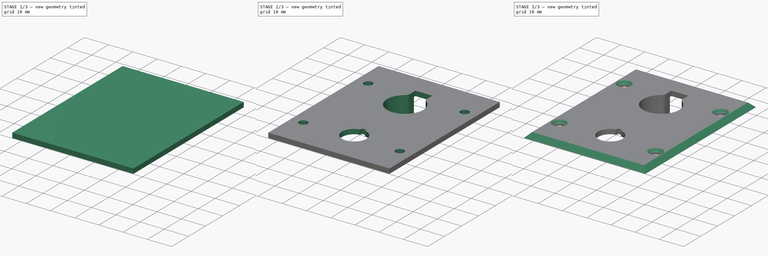
[diagram: build sequence overview — one tinted view per stage of 3, left to right]
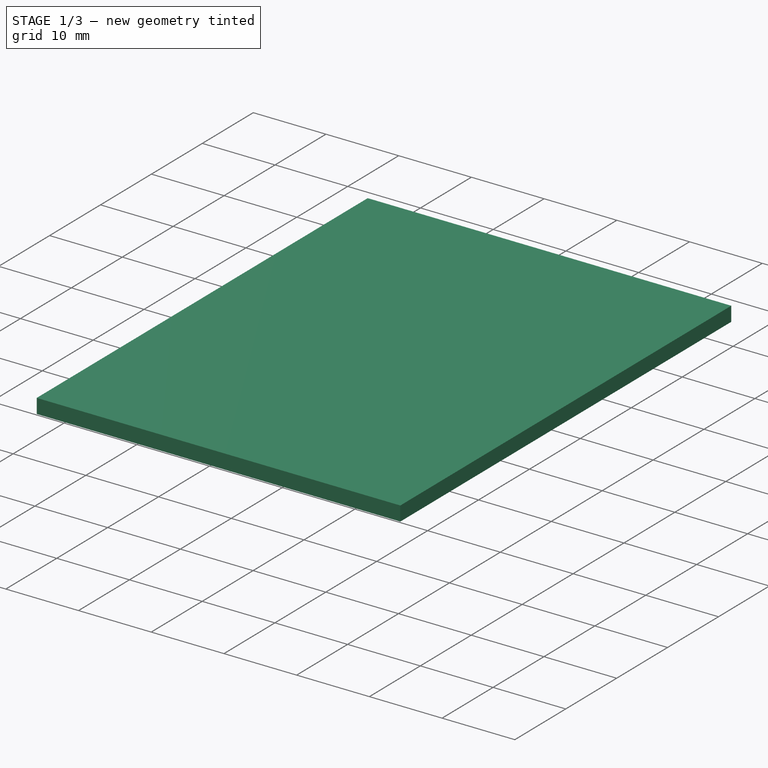
[diagram: stage 1 of 3 — iso view after this stage's code; geometry added in this stage tinted green]
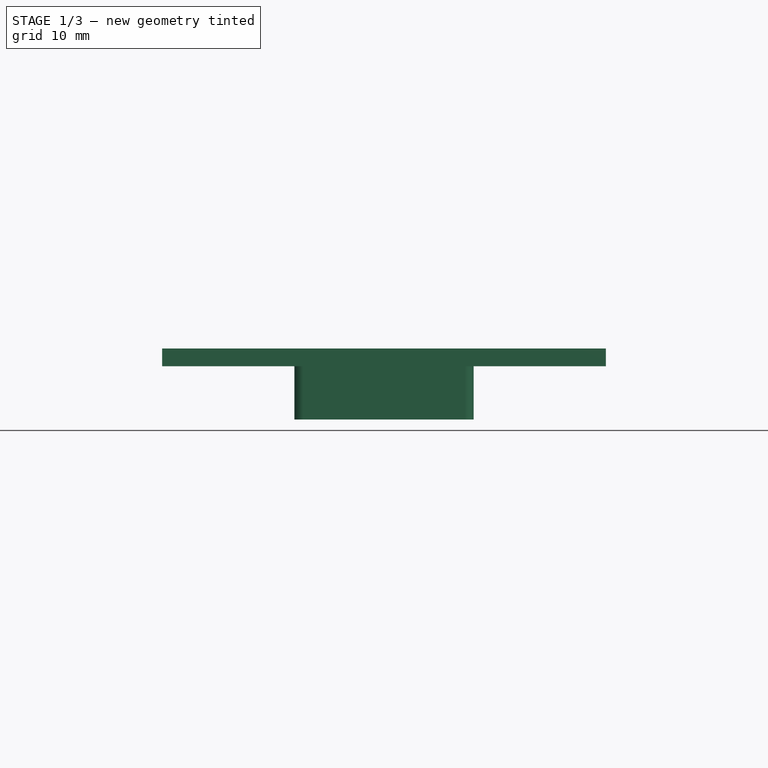
[diagram: stage 1 of 3 — front view after this stage's code; geometry added in this stage tinted green]
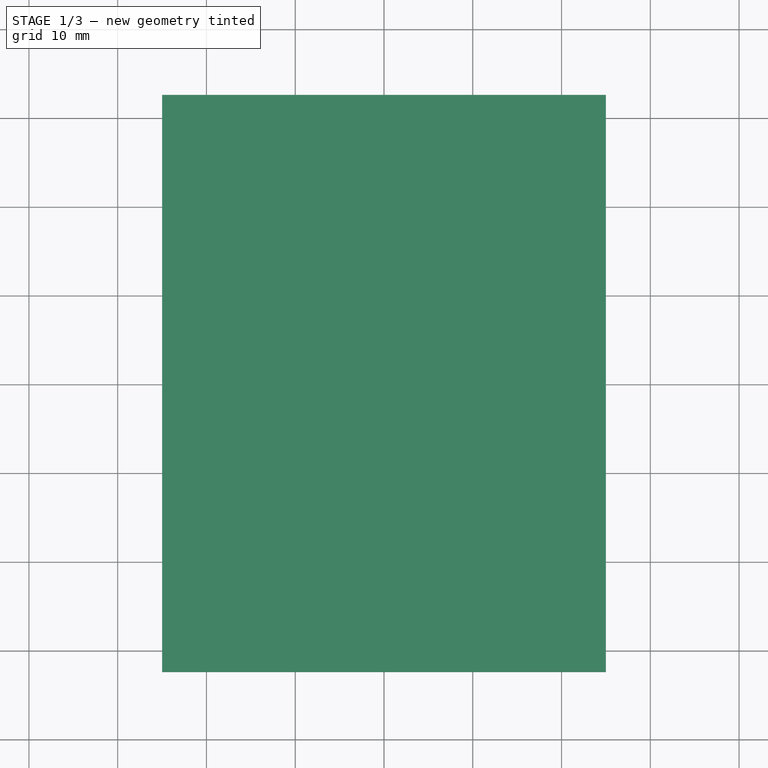
[diagram: stage 1 of 3 — top view after this stage's code; geometry added in this stage tinted green]
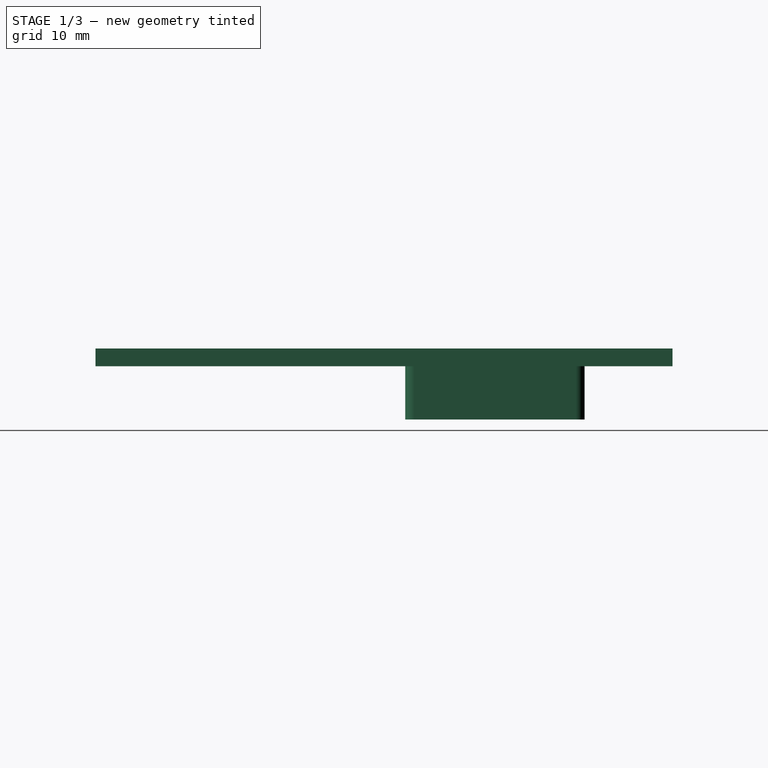
[diagram: stage 1 of 3 — right view after this stage's code; geometry added in this stage tinted green]
FCSTD DOCUMENT  (FreeCAD 0.21R33771 (Git))
Label: connector_plate_T245_T115
License: All rights reserved
LicenseURL: https://en.wikipedia.org/wiki/All_rights_reserved
objects: Sketcher::SketchObject×4, PartDesign::Pad×2, PartDesign::Plane×2, PartDesign::Pocket×2, PartDesign::Chamfer×2, Spreadsheet::Sheet×1, PartDesign::Body×1
note: 19 computed .brp shape members not serialized (recipe doc carries the construction recipe); baked Part::Feature solids carry a one-line shape summary decoded from their .brp

FEATURE [Spreadsheet::Sheet] Spreadsheet  label="settings"
  cells = A1='Plate X; B1(plate_X)=50; C1='holes x space; D1(holes_X_space)=39.8; E1='T245 X pos; F1(T245_X)=25; G1='T245 mount width; H1(T245_mount_W)=20.2; I1='T115 X pos; J1(T115_X)=25; A2='Plate Y; B2(plate_Y)=65; C2='holes y space; D2(holes_Y_space)=38.2; E2='T245 Y pos; F2(T245_Y)=45; G2='T245 mount height; H2(T245_mount_H)=6; I2='T115 Y pos; J2(T115_Y)=15; A3='Plate Z; B3(plate_Z)=2; C3='holes dia; D3(holes_D)=3.5; E3='T245 hole dia; F3(T245_hole_D)=15; G3='T245 mount hole pitch; H3(T245_mount_hole_P)=14.5; I3='T115 hole dia; J3(T115_hole_D)=10.1; C4='Hole chamfer; D4(holes_C)=1.2; E4='T245 lip Lengt; F4(T245_lip_L)=11; G4='T245 mount hole dia; H4(T245_mount_hole_D)=2; I4='T115 lip length; J4(T115_lip_L)=5.9; E5='T245 lip Width; F5(T245_lip_W)=7; G5='T245 mount fillet length; H5(T245_mount_fillet_L)=1; I5='T115 lip width; J5(T115_lip_W)=1.8; E6='T245 chamfer Len; F6(T245_chamfer_L)=1; E7='T245 chamfer arc radius; F7(T245_chamfer_R)=2; A10='Calculations; A11='Zero X; B11(plate_zero_X)==plate_X / 2; E11='T245 lip+chamf; F11(T245_lip_chamfer_L)==T245_lip_W + T245_chamfer_L; A12='Zero Y; B12(plate_zero_Y)==plate_Y / 2; A13='Plate chamfer; B13(plate_C)==plate_Z - 0.1
FEATURE [Sketcher::SketchObject] Sketch
  FullyConstrained = true
  MapMode = 5
  Support = -> [XY_Plane]
  expr: Constraints[10] = <<settings>>.plate_Y
  expr: Constraints[9] = <<settings>>.plate_X
  sketch-geometry (4):
    g0: LineSegment StartX=-25 StartY=32.5 StartZ=0 EndX=25 EndY=32.5 EndZ=0
    g1: LineSegment StartX=25 StartY=32.5 StartZ=0 EndX=25 EndY=-32.5 EndZ=0
    g2: LineSegment StartX=25 StartY=-32.5 StartZ=0 EndX=-25 EndY=-32.5 EndZ=0
    g3: LineSegment StartX=-25 StartY=-32.5 StartZ=0 EndX=-25 EndY=32.5 EndZ=0
  constraints (11):
    c: Coincident(g0,g1)
    c: Coincident(g1,g2)
    c: Coincident(g2,g3)
    c: Coincident(g3,g0)
    c: Horizontal(g0)
    c: Horizontal(g2)
    c: Vertical(g1)
    c: Vertical(g3)
    c: Symmetric(g0,g2,g-1)
    c: Distance(g0) = 50
    c: Distance(g3) = 65
FEATURE [PartDesign::Pad] Pad  label="plate"
  Direction = (0,0,1)
  Length = 2
  Length2 = 10
  Profile = -> Sketch
  ReferenceAxis = -> Sketch [N_Axis]
  Type = 0
  expr: Length = <<settings>>.plate_Z
FEATURE [PartDesign::Plane] DatumPlane  label="top_plane"
  AttachmentOffset = pos=(0,0,2) rot=(0,0,1;0rad)
  Length = 61.4018
  MapMode = 5
  Placement = pos=(0,0,2) rot=(0,0,1;0rad)
  ResizeMode = 0
  Support = -> [XY_Plane]
  Width = 76.4018
  expr: .AttachmentOffset.Base.z = <<settings>>.plate_Z
FEATURE [Sketcher::SketchObject] Sketch001
  FullyConstrained = true
  MapMode = 5
  Placement = pos=(0,0,2) rot=(0,0,1;0rad)
  Support = -> [DatumPlane]
  expr: Constraints[10] = <<settings>>.holes_Y_space
  expr: Constraints[18] = <<settings>>.holes_D
  expr: Constraints[9] = <<settings>>.holes_X_space
  sketch-geometry (8):
    g0: LineSegment StartX=-19.9 StartY=19.1 StartZ=0 EndX=19.9 EndY=19.1 EndZ=0
    g1: LineSegment StartX=19.9 StartY=19.1 StartZ=0 EndX=19.9 EndY=-19.1 EndZ=0
    g2: LineSegment StartX=19.9 StartY=-19.1 StartZ=0 EndX=-19.9 EndY=-19.1 EndZ=0
    g3: LineSegment StartX=-19.9 StartY=-19.1 StartZ=0 EndX=-19.9 EndY=19.1 EndZ=0
    g4: Circle CenterX=-19.9 CenterY=19.1 CenterZ=0 NormalX=0 NormalY=0 NormalZ=1 AngleXU=0 Radius=1.75
    g5: Circle CenterX=19.9 CenterY=19.1 CenterZ=0 NormalX=0 NormalY=0 NormalZ=1 AngleXU=0 Radius=1.75
    g6: Circle CenterX=19.9 CenterY=-19.1 CenterZ=0 NormalX=0 NormalY=0 NormalZ=1 AngleXU=0 Radius=1.75
    g7: Circle CenterX=-19.9 CenterY=-19.1 CenterZ=0 NormalX=0 NormalY=0 NormalZ=1 AngleXU=0 Radius=1.75
  constraints (19):
    c: Coincident(g0,g1)
    c: Coincident(g1,g2)
    c: Coincident(g2,g3)
    c: Coincident(g3,g0)
    c: Horizontal(g0)
    c: Horizontal(g2)
    c: Vertical(g1)
    c: Vertical(g3)
    c: Symmetric(g0,g2,g-1)
    c: Distance(g0) = 39.8
    c: Distance(g3) = 38.2
    c: Coincident(g4,g0)
    c: Coincident(g5,g0)
    c: Coincident(g7,g2)
    c: Coincident(g6,g1)
    c: Equal(g4,g5)
    c: Equal(g5,g6)
    c: Equal(g6,g7)
    c: Diameter(g4) = 3.5
FEATURE [Sketcher::SketchObject] Sketch002
  FullyConstrained = true
  MapMode = 5
  Placement = pos=(0,0,2) rot=(0,0,1;0rad)
  Support = -> [DatumPlane]
  expr: Constraints[10] = <<settings>>.plate_zero_X
  expr: Constraints[20] = <<settings>>.T245_Y
  expr: Constraints[21] = <<settings>>.T245_X
  expr: Constraints[23] = <<settings>>.T245_lip_chamfer_L
  expr: Constraints[25] = <<settings>>.T245_hole_D
  expr: Constraints[30] = <<settings>>.T245_lip_L
  expr: Constraints[33] = <<settings>>.T245_lip_W
  expr: Constraints[46] = <<settings>>.T245_chamfer_R
  expr: Constraints[47] = <<settings>>.T245_chamfer_L
  expr: Constraints[50] = <<settings>>.T245_chamfer_L
  expr: Constraints[51] = <<settings>>.T245_chamfer_R
  expr: Constraints[60] = <<settings>>.T115_X
  expr: Constraints[61] = <<settings>>.T115_Y
  expr: Constraints[65] = <<settings>>.T115_lip_W
  expr: Constraints[66] = <<settings>>.T115_hole_D
  expr: Constraints[69] = <<settings>>.T115_lip_L
  expr: Constraints[9] = <<settings>>.plate_zero_Y
  sketch-geometry (27):
    g0: LineSegment StartX=0 StartY=0 StartZ=0 EndX=-25 EndY=0 EndZ=0
    g1: LineSegment StartX=-25 StartY=0 StartZ=0 EndX=-25 EndY=-32.5 EndZ=0
    g2: LineSegment StartX=-25 StartY=-32.5 StartZ=0 EndX=0 EndY=-32.5 EndZ=0
    g3: LineSegment StartX=0 StartY=-32.5 StartZ=0 EndX=0 EndY=0 EndZ=0
    g4: LineSegment StartX=-25 StartY=-32.5 StartZ=0 EndX=0 EndY=-32.5 EndZ=0
    g5: LineSegment StartX=-8e-16 StartY=-32.5 StartZ=0 EndX=-8e-16 EndY=12.5 EndZ=0
    g6: LineSegment StartX=-8e-16 StartY=12.5 StartZ=0 EndX=-25 EndY=12.5 EndZ=0
    g7: LineSegment StartX=-25 StartY=12.5 StartZ=0 EndX=-25 EndY=-32.5 EndZ=0
    g8: ArcOfCircle CenterX=-8e-16 CenterY=12.5 CenterZ=0 NormalX=0 NormalY=0 NormalZ=1 AngleXU=0 Radius=7.5 StartAngle=2.13333 EndAngle=7.29145
    g9: Circle CenterX=-8e-16 CenterY=12.5 CenterZ=0 NormalX=0 NormalY=0 NormalZ=1 AngleXU=0 Radius=7.5
    g10: LineSegment StartX=-8e-16 StartY=12.5 StartZ=0 EndX=-8e-16 EndY=23.5 EndZ=0
    g11: LineSegment StartX=-3.5 StartY=23.5 StartZ=0 EndX=3.5 EndY=23.5 EndZ=0
    g12: LineSegment StartX=-3.5 StartY=23.5 StartZ=0 EndX=-3.5 EndY=19.1332 EndZ=0
    g13: LineSegment StartX=3.5 StartY=23.5 StartZ=0 EndX=3.5 EndY=19.1332 EndZ=0
    g14: LineSegment StartX=-3.5 StartY=23.5 StartZ=0 EndX=-3.5 EndY=20.1332 EndZ=0
    g15: LineSegment StartX=3.5 StartY=23.5 StartZ=0 EndX=3.5 EndY=20.1332 EndZ=0
    g16: ArcOfCircle CenterX=-5.49971 CenterY=20.1675 CenterZ=0 NormalX=0 NormalY=0 NormalZ=1 AngleXU=0 Radius=2 StartAngle=5.56023 EndAngle=6.26606
    g17: ArcOfCircle CenterX=5.49971 CenterY=20.1675 CenterZ=0 NormalX=0 NormalY=0 NormalZ=1 AngleXU=0 Radius=2 StartAngle=3.15872 EndAngle=3.86455
    g18: LineSegment StartX=-25 StartY=-17.5 StartZ=0 EndX=0 EndY=-17.5 EndZ=0
    g19: LineSegment StartX=-1.6e-15 StartY=-17.5 StartZ=0 EndX=-1.6e-15 EndY=-32.5 EndZ=0
    g20: LineSegment StartX=-1.6e-15 StartY=-32.5 StartZ=0 EndX=-25 EndY=-32.5 EndZ=0
    g21: LineSegment StartX=-25 StartY=-32.5 StartZ=0 EndX=-25 EndY=-17.5 EndZ=0
    g22: ArcOfCircle CenterX=-1.6e-15 CenterY=-17.5 CenterZ=0 NormalX=0 NormalY=0 NormalZ=1 AngleXU=0 Radius=5.05 StartAngle=1.74997 EndAngle=7.67481
    g23: LineSegment StartX=-1.6e-15 StartY=-17.5 StartZ=0 EndX=-1.6e-15 EndY=-11.6 EndZ=0
    g24: LineSegment StartX=-0.9 StartY=-11.6 StartZ=0 EndX=0.9 EndY=-11.6 EndZ=0
    g25: LineSegment StartX=-0.9 StartY=-11.6 StartZ=0 EndX=-0.9 EndY=-12.5308 EndZ=0
    g26: LineSegment StartX=0.9 StartY=-11.6 StartZ=0 EndX=0.9 EndY=-12.5308 EndZ=0
  constraints (77):
    c: Coincident(g0,g1)
    c: Coincident(g1,g2)
    c: Coincident(g2,g3)
    c: Coincident(g3,g0)
    c: Horizontal(g0)
    c: Horizontal(g2)
    c: Vertical(g1)
    c: Vertical(g3)
    c: Coincident(g0,g-1)
    c: Distance(g1) = 32.5
    c: Distance(g2) = 25
    c: Coincident(g4,g5)
    c: Coincident(g5,g6)
    c: Coincident(g6,g7)
    c: Coincident(g7,g4)
    c: Horizontal(g4)
    c: Horizontal(g6)
    c: Vertical(g5)
    c: Vertical(g7)
    c: Coincident(g4,g1)
    c: Distance(g5) = 45
    c: Distance(g6) = 25
    c: Horizontal(g8,g8)
    c: Distance(g8,g8) = 8
    c: Coincident(g9,g8)
    c: Diameter(g9) = 15
    c: Equal(g8,g9)
    c: Coincident(g8,g5)
    c: Coincident(g10,g8)
    c: Vertical(g10)
    c: Distance(g10) = 11
    c: Horizontal(g11)
    c: Symmetric(g11,g11,g10)
    c: Distance(g11) = 7
    c: Coincident(g12,g11)
    c: PointOnObject(g12,g9)
    c: Vertical(g12)
    c: Coincident(g13,g11)
    c: PointOnObject(g13,g9)
    c: Vertical(g13)
    c: Coincident(g14,g11)
    c: PointOnObject(g14,g12)
    c: Coincident(g15,g11)
    c: PointOnObject(g15,g13)
    c: Coincident(g16,g14)
    c: Coincident(g16,g8)
    c: Distance(g16,g8) = 2
    c: Distance(g14,g12) = 1
    c: Coincident(g17,g8)
    c: Coincident(g17,g15)
    c: Distance(g15,g13) = 1
    c: Distance(g17,g8) = 2
    c: Coincident(g18,g19)
    c: Coincident(g19,g20)
    c: Coincident(g20,g21)
    c: Coincident(g21,g18)
    c: Horizontal(g18)
    c: Horizontal(g20)
    c: Vertical(g19)
    c: Vertical(g21)
    c: Distance(g20) = 25
    c: Distance(g21) = 15
    c: Coincident(g20,g1)
    c: Coincident(g22,g18)
    c: Horizontal(g22,g22)
    c: Distance(g22,g22) = 1.8
    c: Diameter(g22) = 10.1
    c: Coincident(g23,g22)
    c: Vertical(g23)
    c: Distance(g23,g22) = 5.9
    c: Symmetric(g24,g24,g23)
    c: Horizontal(g24)
    c: Vertical(g24,g22)
    c: Coincident(g25,g24)
    c: Coincident(g25,g22)
    c: Coincident(g26,g24)
    c: Coincident(g26,g22)
FEATURE [PartDesign::Plane] DatumPlane001  label="bottom plane"
  Length = 61.4018
  MapMode = 5
  ResizeMode = 0
  Support = -> [XY_Plane]
  Width = 76.4018
FEATURE [Sketcher::SketchObject] Sketch003
  FullyConstrained = true
  MapMode = 5
  Support = -> [DatumPlane001]
  expr: Constraints[10] = <<settings>>.plate_zero_X
  expr: Constraints[20] = <<settings>>.T245_X
  expr: Constraints[21] = <<settings>>.T245_Y
  expr: Constraints[42] = <<settings>>.T245_mount_W
  expr: Constraints[43] = <<settings>>.T245_mount_hole_P
  expr: Constraints[54] = <<settings>>.T245_mount_fillet_L
  expr: Constraints[58] = <<settings>>.T245_mount_fillet_L
  expr: Constraints[69] = <<settings>>.T245_mount_fillet_L
  expr: Constraints[70] = <<settings>>.T245_mount_fillet_L
  expr: Constraints[79] = <<settings>>.T245_mount_hole_D
  expr: Constraints[9] = <<settings>>.plate_zero_Y
  sketch-geometry (28):
    g0: LineSegment StartX=0 StartY=0 StartZ=0 EndX=25 EndY=0 EndZ=0
    g1: LineSegment StartX=25 StartY=0 StartZ=0 EndX=25 EndY=-32.5 EndZ=0
    g2: LineSegment StartX=25 StartY=-32.5 StartZ=0 EndX=0 EndY=-32.5 EndZ=0
    g3: LineSegment StartX=0 StartY=-32.5 StartZ=0 EndX=0 EndY=0 EndZ=0
    g4: LineSegment StartX=25 StartY=-32.5 StartZ=0 EndX=0 EndY=-32.5 EndZ=0
    g5: LineSegment StartX=0 StartY=-32.5 StartZ=0 EndX=0 EndY=12.5 EndZ=0
    g6: LineSegment StartX=0 StartY=12.5 StartZ=0 EndX=25 EndY=12.5 EndZ=0
    g7: LineSegment StartX=25 StartY=12.5 StartZ=0 EndX=25 EndY=-32.5 EndZ=0
    g8: LineSegment StartX=-10.1 StartY=2.4 StartZ=0 EndX=10.1 EndY=2.4 EndZ=0
    g9: LineSegment StartX=10.1 StartY=2.4 StartZ=0 EndX=10.1 EndY=22.6 EndZ=0
    g10: LineSegment StartX=10.1 StartY=22.6 StartZ=0 EndX=-10.1 EndY=22.6 EndZ=0
    g11: LineSegment StartX=-10.1 StartY=22.6 StartZ=0 EndX=-10.1 EndY=2.4 EndZ=0
    g12: LineSegment StartX=-7.25 StartY=5.25 StartZ=0 EndX=7.25 EndY=5.25 EndZ=0
    g13: LineSegment StartX=7.25 StartY=5.25 StartZ=0 EndX=7.25 EndY=19.75 EndZ=0
    g14: LineSegment StartX=7.25 StartY=19.75 StartZ=0 EndX=-7.25 EndY=19.75 EndZ=0
    g15: LineSegment StartX=-7.25 StartY=19.75 StartZ=0 EndX=-7.25 EndY=5.25 EndZ=0
    g16: LineSegment StartX=-10.1 StartY=3.4 StartZ=0 EndX=-10.1 EndY=21.6 EndZ=0
    g17: LineSegment StartX=-9.1 StartY=22.6 StartZ=0 EndX=9.1 EndY=22.6 EndZ=0
    g18: LineSegment StartX=10.1 StartY=21.6 StartZ=0 EndX=10.1 EndY=3.4 EndZ=0
    g19: LineSegment StartX=-9.1 StartY=2.4 StartZ=0 EndX=9.1 EndY=2.4 EndZ=0
    g20: ArcOfCircle CenterX=-9.1 CenterY=3.4 CenterZ=0 NormalX=0 NormalY=0 NormalZ=1 AngleXU=0 Radius=1 StartAngle=3.14159 EndAngle=4.71239
    g21: ArcOfCircle CenterX=9.1 CenterY=3.4 CenterZ=0 NormalX=0 NormalY=0 NormalZ=1 AngleXU=0 Radius=1 StartAngle=4.71239 EndAngle=6.28319
    g22: ArcOfCircle CenterX=9.1 CenterY=21.6 CenterZ=0 NormalX=0 NormalY=0 NormalZ=1 AngleXU=0 Radius=1 StartAngle=-9e-16 EndAngle=1.5708
    g23: ArcOfCircle CenterX=-9.1 CenterY=21.6 CenterZ=0 NormalX=0 NormalY=0 NormalZ=1 AngleXU=0 Radius=1 StartAngle=1.5708 EndAngle=3.14159
    g24: Circle CenterX=-7.25 CenterY=5.25 CenterZ=0 NormalX=0 NormalY=0 NormalZ=1 AngleXU=0 Radius=1
    g25: Circle CenterX=7.25 CenterY=5.25 CenterZ=0 NormalX=0 NormalY=0 NormalZ=1 AngleXU=0 Radius=1
    g26: Circle CenterX=7.25 CenterY=19.75 CenterZ=0 NormalX=0 NormalY=0 NormalZ=1 AngleXU=0 Radius=1
    g27: Circle CenterX=-7.25 CenterY=19.75 CenterZ=0 NormalX=0 NormalY=0 NormalZ=1 AngleXU=0 Radius=1
  constraints (80):
    c: Coincident(g0,g1)
    c: Coincident(g1,g2)
    c: Coincident(g2,g3)
    c: Coincident(g3,g0)
    c: Horizontal(g0)
    c: Horizontal(g2)
    c: Vertical(g1)
    c: Vertical(g3)
    c: Coincident(g0,g-1)
    c: Distance(g1) = 32.5
    c: Distance(g2) = 25
    c: Coincident(g4,g5)
    c: Coincident(g5,g6)
    c: Coincident(g6,g7)
    c: Coincident(g7,g4)
    c: Horizontal(g4)
    c: Horizontal(g6)
    c: Vertical(g5)
    c: Vertical(g7)
    c: Coincident(g4,g1)
    c: Distance(g6) = 25
    c: Distance(g5) = 45
    c: Coincident(g8,g9)
    c: Coincident(g9,g10)
    c: Coincident(g10,g11)
    c: Coincident(g11,g8)
    c: Horizontal(g8)
    c: Horizontal(g10)
    c: Vertical(g9)
    c: Vertical(g11)
    c: Symmetric(g8,g10,g5)
    c: Equal(g8,g11)
    c: Coincident(g12,g13)
    c: Coincident(g13,g14)
    c: Coincident(g14,g15)
    c: Coincident(g15,g12)
    c: Horizontal(g12)
    c: Horizontal(g14)
    c: Vertical(g13)
    c: Vertical(g15)
    c: Symmetric(g12,g14,g5)
    c: Equal(g13,g12)
    c: Distance(g10) = 20.2
    c: Distance(g14) = 14.5
    c: PointOnObject(g16,g11)
    c: PointOnObject(g16,g11)
    c: PointOnObject(g17,g10)
    c: PointOnObject(g17,g10)
    c: PointOnObject(g18,g9)
    c: PointOnObject(g18,g9)
    c: PointOnObject(g19,g8)
    c: Horizontal(g19)
    c: Horizontal(g20,g20)
    c: Vertical(g20,g20)
    c: Distance(g20,g8) = 1
    c: Coincident(g19,g20)
    c: Vertical(g23,g23)
    c: Horizontal(g23,g23)
    c: Distance(g23,g10) = 1
    c: Coincident(g17,g23)
    c: Coincident(g16,g23)
    c: Coincident(g22,g17)
    c: Vertical(g22,g17)
    c: Horizontal(g22,g22)
    c: Coincident(g18,g22)
    c: Coincident(g18,g21)
    c: Coincident(g21,g19)
    c: Horizontal(g21,g18)
    c: Vertical(g21,g19)
    c: Distance(g17,g9) = 1
    c: Distance(g19,g8) = 1
    c: Coincident(g16,g20)
    c: Coincident(g24,g12)
    c: Coincident(g25,g12)
    c: Coincident(g26,g13)
    c: Coincident(g27,g14)
    c: Equal(g24,g27)
    c: Equal(g27,g26)
    c: Equal(g26,g25)
    c: Diameter(g24) = 2
FEATURE [PartDesign::Pad] Pad001  label="T245_mount"
  BaseFeature = -> Pad
  Direction = (0,0,1)
  Length = 6
  Length2 = 10
  Profile = -> Sketch003
  ReferenceAxis = -> Sketch003 [N_Axis]
  Reversed = true
  Type = 0
  expr: Length = <<settings>>.T245_mount_H
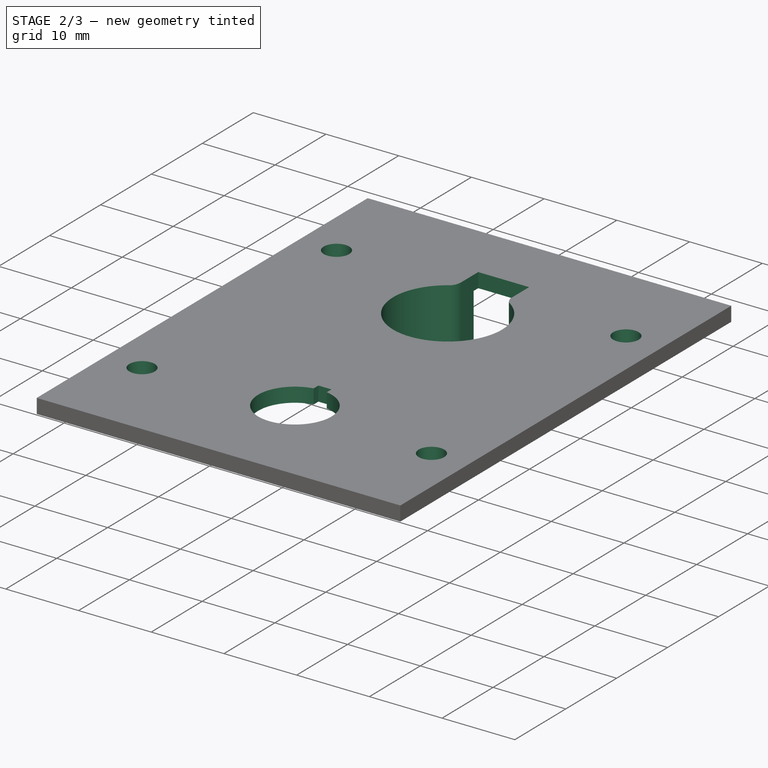
[diagram: stage 2 of 3 — iso view after this stage's code; geometry added in this stage tinted green]
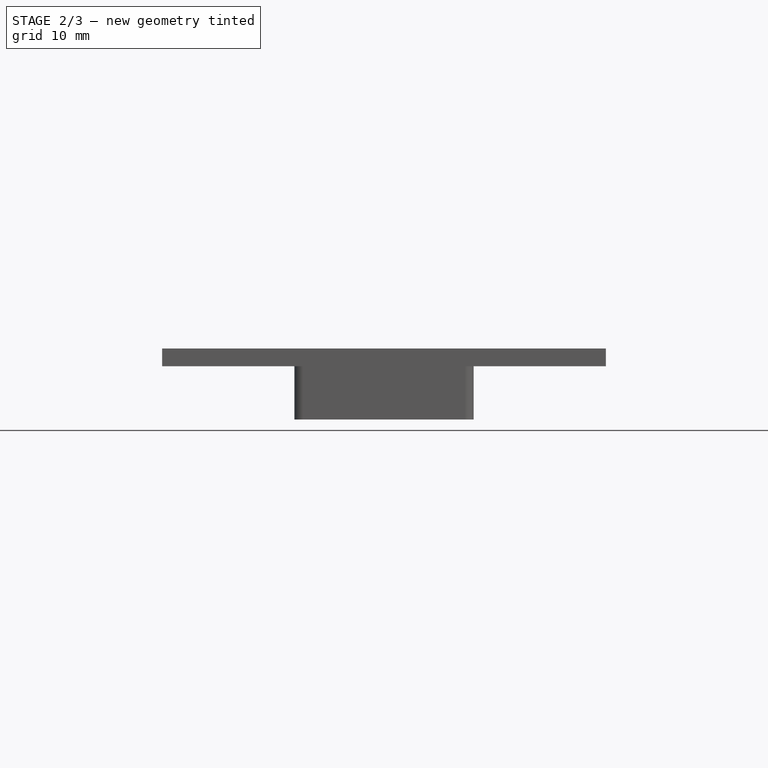
[diagram: stage 2 of 3 — front view after this stage's code; geometry added in this stage tinted green]
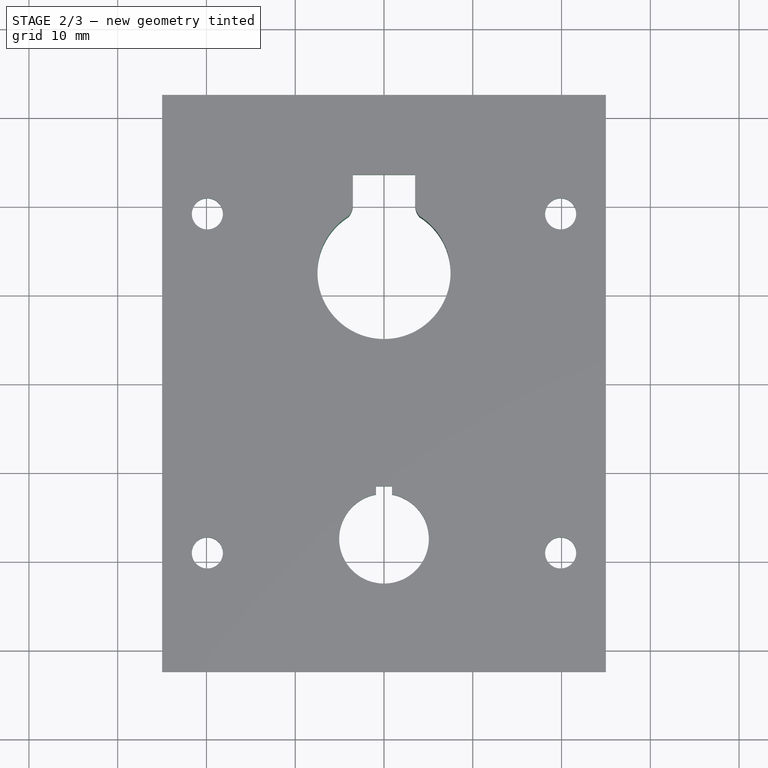
[diagram: stage 2 of 3 — top view after this stage's code; geometry added in this stage tinted green]
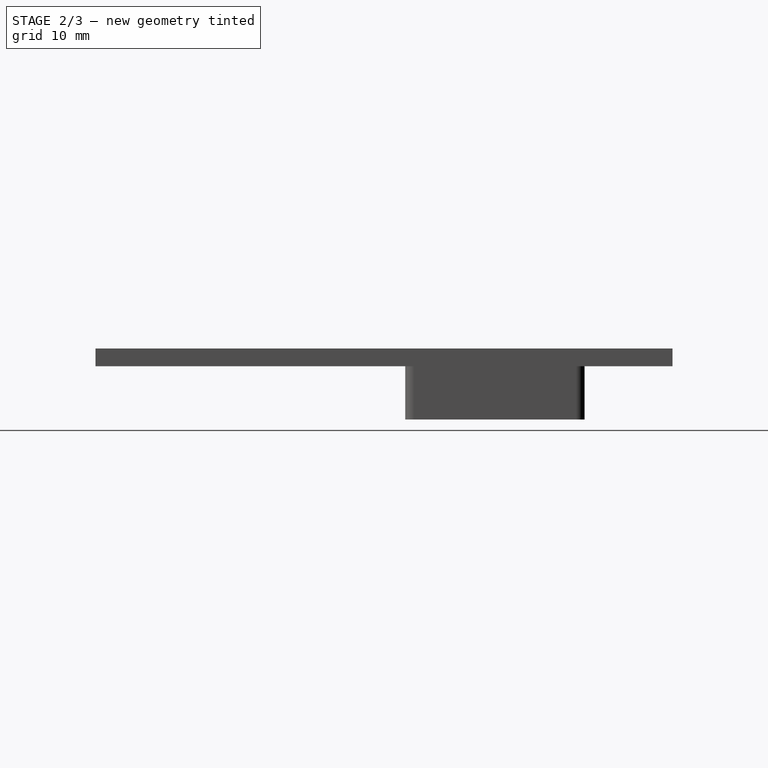
[diagram: stage 2 of 3 — right view after this stage's code; geometry added in this stage tinted green]
FEATURE [PartDesign::Pocket] Pocket001  label="connector_holes"
  BaseFeature = -> Pad001
  Direction = (0,0,-1)
  Length = 5
  Length2 = 5
  Profile = -> Sketch002
  ReferenceAxis = -> Sketch002 [N_Axis]
  Type = 1
FEATURE [PartDesign::Pocket] Pocket  label="holes_pocket"
  BaseFeature = -> Pocket001
  Direction = (0,0,-1)
  Length = 2
  Length2 = 5
  Profile = -> Sketch001
  ReferenceAxis = -> Sketch001 [N_Axis]
  Type = 0
  expr: Length = <<settings>>.plate_Z
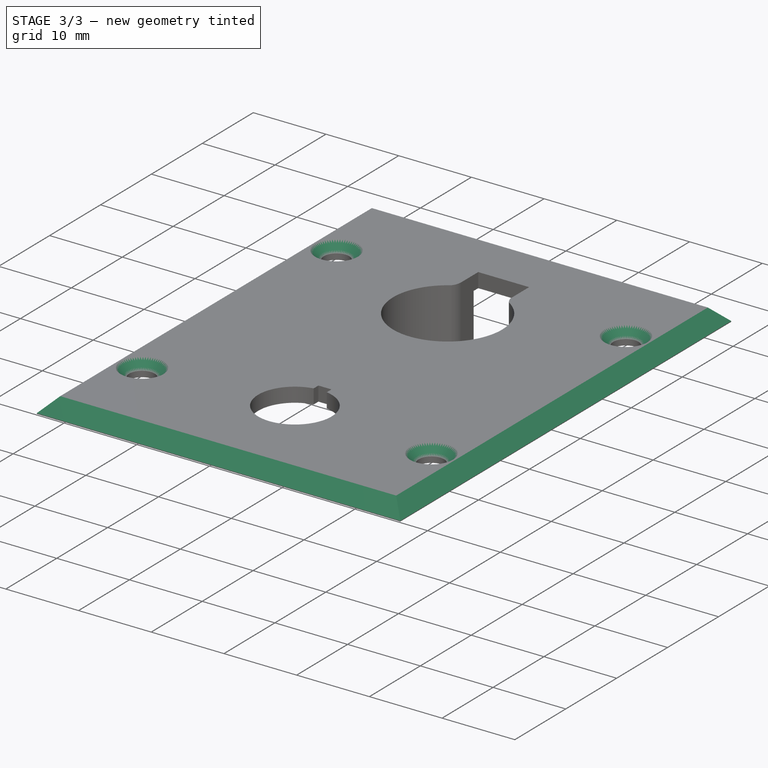
[diagram: stage 3 of 3 — iso view after this stage's code; geometry added in this stage tinted green]
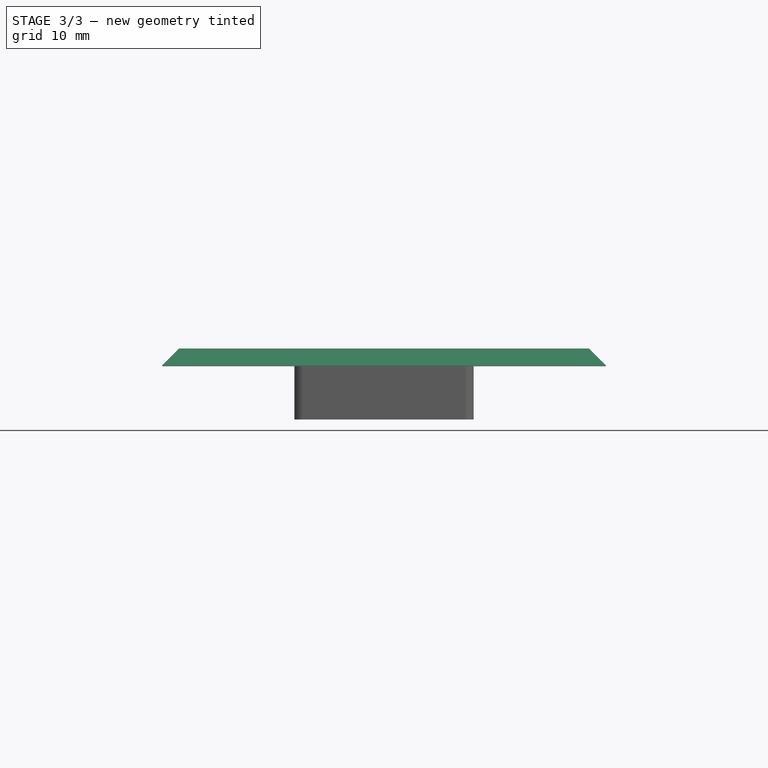
[diagram: stage 3 of 3 — front view after this stage's code; geometry added in this stage tinted green]
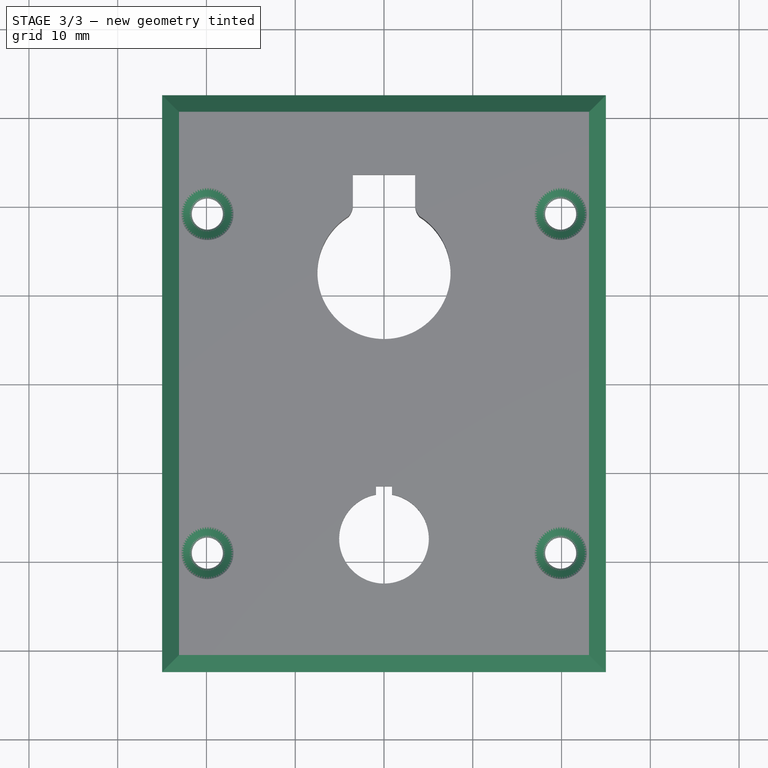
[diagram: stage 3 of 3 — top view after this stage's code; geometry added in this stage tinted green]
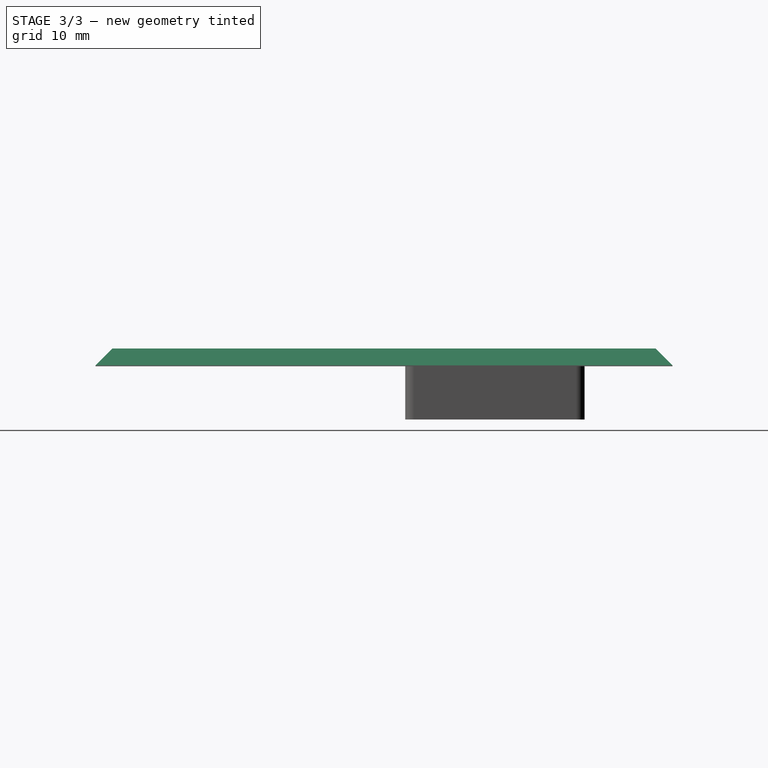
[diagram: stage 3 of 3 — right view after this stage's code; geometry added in this stage tinted green]
FEATURE [PartDesign::Chamfer] Chamfer  label="hole_chamfer"
  Angle = 45
  Base = -> Pocket [Edge39,Edge46,Edge38,Edge33]
  BaseFeature = -> Pocket
  ChamferType = 0
  FlipDirection = false
  Size = 1.2
  Size2 = 1
  SupportTransform = false
  UseAllEdges = false
  expr: Size = <<settings>>.holes_C
FEATURE [PartDesign::Chamfer] Chamfer001
  Angle = 45
  Base = -> Chamfer [Edge3,Edge2,Edge4,Edge5]
  BaseFeature = -> Chamfer
  ChamferType = 0
  FlipDirection = false
  Size = 1.9
  Size2 = 1
  SupportTransform = false
  UseAllEdges = false
  expr: Size = <<settings>>.plate_C
FEATURE [PartDesign::Body] Body
  Group = -> [Sketch,Pad,DatumPlane,Sketch001,Sketch002,DatumPlane001,Sketch003,Pad001,Pocket001,Pocket,Chamfer,Chamfer001]
  Origin = -> Origin
  Tip = -> Chamfer001
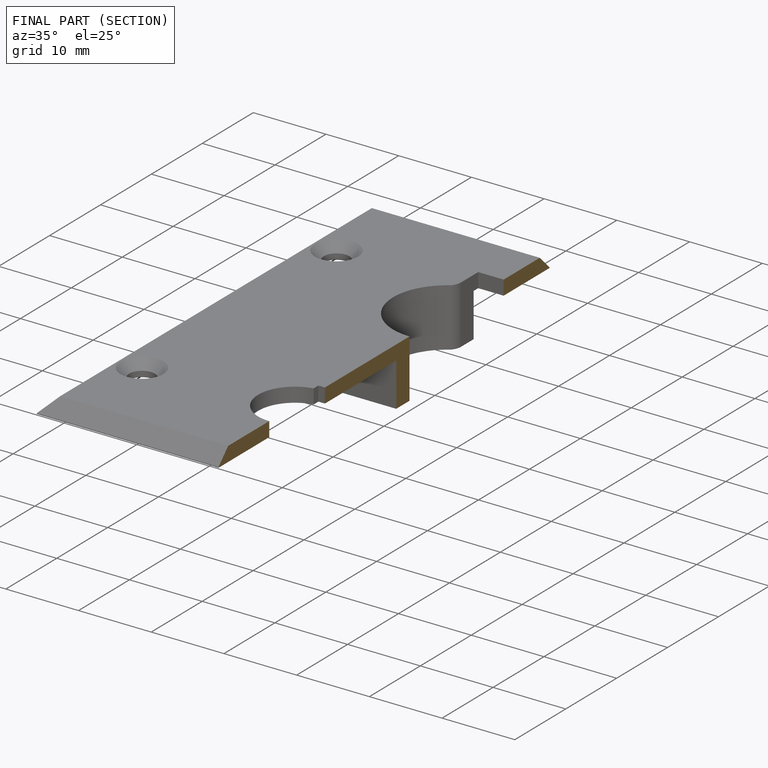
[diagram: finished part — half-section view (interior)]
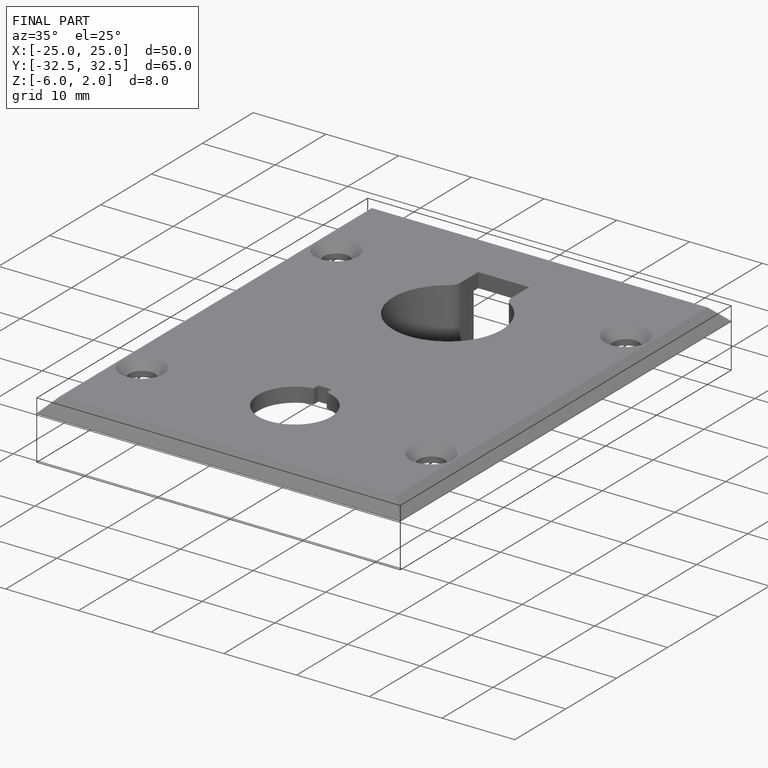
[diagram: finished part — iso view with bounding-box wireframe]
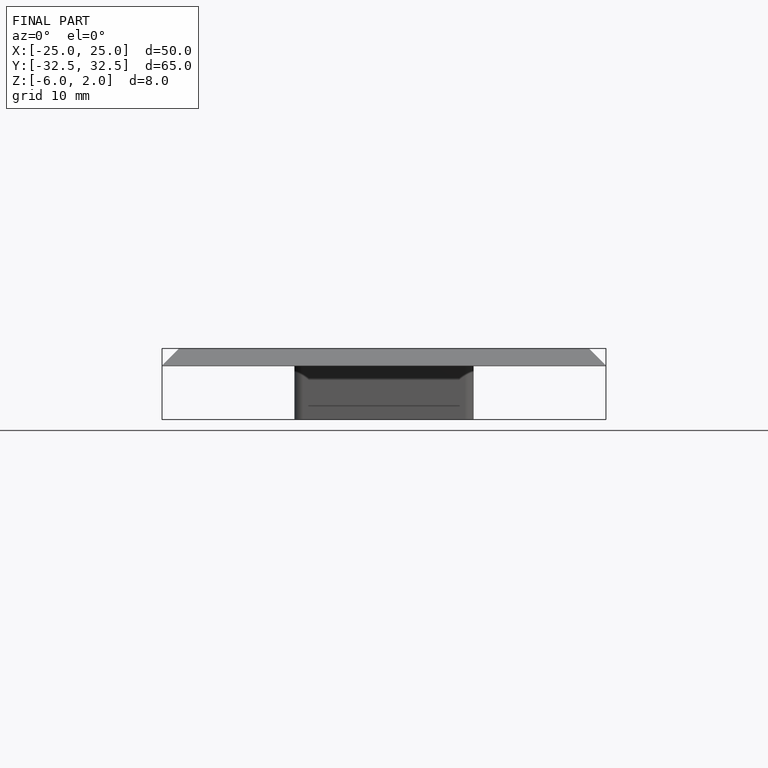
[diagram: finished part — front view with bounding-box wireframe]
